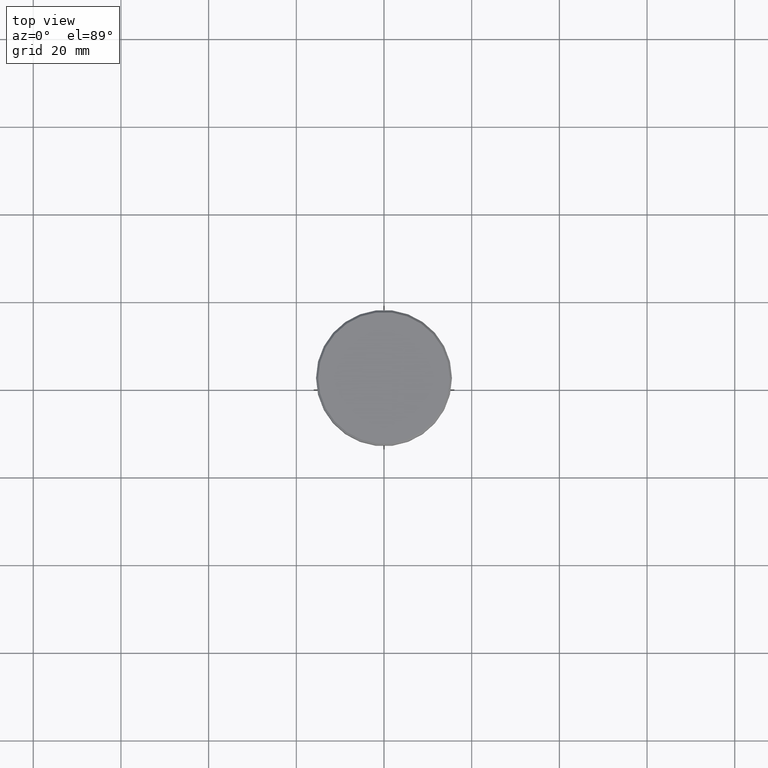
[diagram: clean part render]
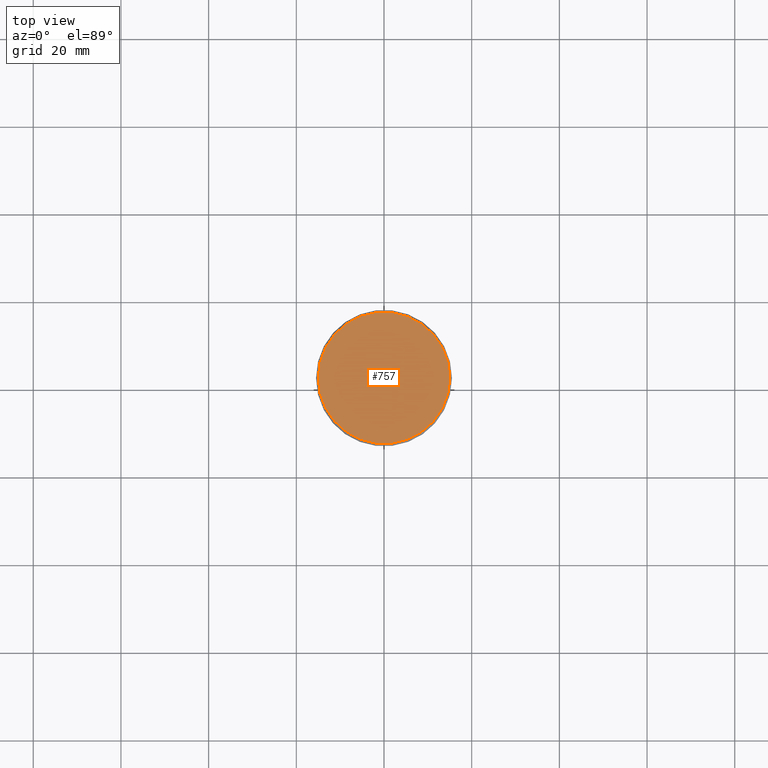
[diagram: same view with one face highlighted and labeled with its STEP entity id]
A machine part, top view. The second image highlights one B-rep face of the part: STEP entity #757.
In plain terms, the highlighted planar face has unit normal (0, -0, 1).
Its self-contained STEP definition (entity closure, byte-faithful):
#28 = CARTESIAN_POINT ( 'NONE',  ( 0.000000000000000000, 0.000000000000000000, 0.000000000000000000 ) ) ;
#93 = AXIS2_PLACEMENT_3D ( 'NONE', #324, #1041, #689 ) ;
#113 = PLANE ( 'NONE',  #258 ) ;
#191 = AXIS2_PLACEMENT_3D ( 'NONE', #775, #1138, #486 ) ;
#212 = FACE_OUTER_BOUND ( 'NONE', #341, .T. ) ;
#258 = AXIS2_PLACEMENT_3D ( 'NONE', #28, #297, #317 ) ;
#270 = CARTESIAN_POINT ( 'NONE',  ( -14.99999999999998579, 0.000000000000000000, 0.000000000000000000 ) ) ;
#297 = DIRECTION ( 'NONE',  ( 0.000000000000000000, -0.000000000000000000, 1.000000000000000000 ) ) ;
#317 = DIRECTION ( 'NONE',  ( 1.000000000000000000, 0.000000000000000000, 0.000000000000000000 ) ) ;
#324 = CARTESIAN_POINT ( 'NONE',  ( 0.000000000000000000, 0.000000000000000000, 0.000000000000000000 ) ) ;
#341 = EDGE_LOOP ( 'NONE', ( #485, #1089 ) ) ;
#485 = ORIENTED_EDGE ( 'NONE', *, *, #1073, .T. ) ;
#486 = DIRECTION ( 'NONE',  ( 1.000000000000000000, 0.000000000000000000, 0.000000000000000000 ) ) ;
#524 = VERTEX_POINT ( 'NONE', #946 ) ;
#689 = DIRECTION ( 'NONE',  ( 1.000000000000000000, 0.000000000000000000, 0.000000000000000000 ) ) ;
#757 = ADVANCED_FACE ( 'NONE', ( #212 ), #113, .T. ) ;
#775 = CARTESIAN_POINT ( 'NONE',  ( 0.000000000000000000, 0.000000000000000000, 0.000000000000000000 ) ) ;
#882 = VERTEX_POINT ( 'NONE', #270 ) ;
#920 = CIRCLE ( 'NONE', #93, 14.99999999999998579 ) ;
#946 = CARTESIAN_POINT ( 'NONE',  ( 14.99999999999998579, 1.867586368699712587E-15, 0.000000000000000000 ) ) ;
#1014 = CIRCLE ( 'NONE', #191, 14.99999999999998579 ) ;
#1041 = DIRECTION ( 'NONE',  ( -0.000000000000000000, -0.000000000000000000, 1.000000000000000000 ) ) ;
#1068 = EDGE_CURVE ( 'NONE', #524, #882, #1014, .T. ) ;
#1073 = EDGE_CURVE ( 'NONE', #882, #524, #920, .T. ) ;
#1089 = ORIENTED_EDGE ( 'NONE', *, *, #1068, .T. ) ;
#1138 = DIRECTION ( 'NONE',  ( -0.000000000000000000, -0.000000000000000000, 1.000000000000000000 ) ) ;